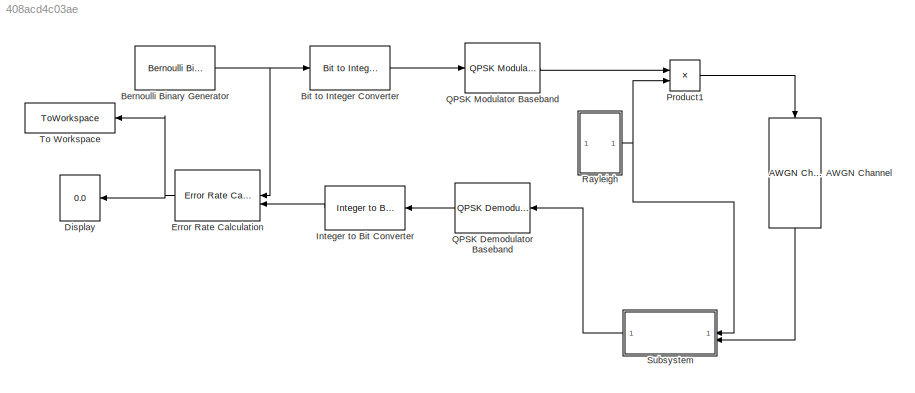
MODEL slx_408acd4c03ae
KIND model
CONFIG AbsTol = auto
CONFIG EnableMultiTasking = off
CONFIG FixedStep = auto
CONFIG MaxStep = auto
CONFIG MinStep = auto
CONFIG RelTol = 1e-3
CONFIG SampleTimeConstraint = Unconstrained
CONFIG SolverName = VariableStepAuto
CONFIG StartTime = 0.0
CONFIG StopTime = 10.0
BLOCK [Reference] AWGN Channel  REF=commchan3/AWGN
Channel
  NameLocation = left
  SourceBlock = commchan3/AWGN\nChannel
  SourceType = AWGN Channel
BLOCK [Reference] Bernoulli Binary Generator  REF=commrandsrc3/Bernoulli Binary
Generator
  SourceBlock = commrandsrc3/Bernoulli Binary\nGenerator
  SourceType = Bernoulli Binary Generator
BLOCK [Reference] Bit to Integer Converter  REF=simulink/Logic and Bit
Operations/Bit to Integer
Converter
  SourceBlock = simulink/Logic and Bit\nOperations/Bit to Integer\nConverter
  SourceType = Bit to Integer Converter
BLOCK [Display] Display
  Decimation = 1
  NameLocation = top
BLOCK [Reference] Error Rate Calculation  REF=commsink2/Error Rate
Calculation
  NameLocation = top
  SourceBlock = commsink2/Error Rate\nCalculation
  SourceType = Error Rate Calculation
BLOCK [Reference] Integer to Bit Converter  REF=simulink/Logic and Bit
Operations/Integer to Bit
Converter
  LibrarySourceBlock = commutil2/Integer to Bit\nConverter
  NameLocation = top
  SourceBlock = simulink/Logic and Bit\nOperations/Integer to Bit\nConverter
  SourceType = Integer to Bit Converter
BLOCK [Product] Product1
BLOCK [Reference] QPSK Demodulator Baseband  REF=commdigbbndpm3/QPSK
Demodulator
Baseband
  LibrarySourceBlock = commhdldigbbndpm/QPSK\nDemodulator\nBaseband
  NameLocation = top
  SourceBlock = commdigbbndpm3/QPSK\nDemodulator\nBaseband
  SourceType = QPSK Demodulator Baseband
BLOCK [Reference] QPSK Modulator Baseband  REF=commdigbbndpm3/QPSK
Modulator
Baseband
  SourceBlock = commdigbbndpm3/QPSK\nModulator\nBaseband
  SourceType = QPSK Modulator Baseband
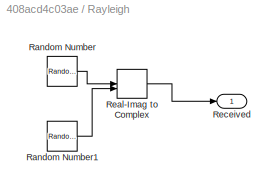
BLOCK [SubSystem] Rayleigh
BLOCK [RandomNumber] Rayleigh/Random Number
  SampleTime = 0.1
  Variance = 1/2
BLOCK [RandomNumber] Rayleigh/Random Number1
  SampleTime = 0.1
  Variance = 1/2
BLOCK [RealImagToComplex] Rayleigh/Real-Imag to Complex
BLOCK [Outport] Rayleigh/Received
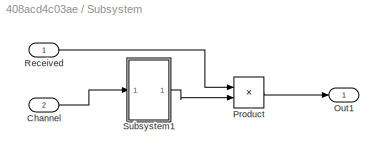
BLOCK [SubSystem] Subsystem
  NameLocation = top
BLOCK [Inport] Subsystem/Channel
  Port = 2
BLOCK [Outport] Subsystem/Out1
BLOCK [Product] Subsystem/Product
BLOCK [Inport] Subsystem/Received
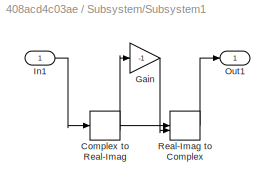
BLOCK [SubSystem] Subsystem/Subsystem1
BLOCK [ComplexToRealImag] Subsystem/Subsystem1/Complex to Real-Imag
BLOCK [Gain] Subsystem/Subsystem1/Gain
  Gain = -1
BLOCK [Inport] Subsystem/Subsystem1/In1
BLOCK [Outport] Subsystem/Subsystem1/Out1
BLOCK [RealImagToComplex] Subsystem/Subsystem1/Real-Imag to Complex
BLOCK [ToWorkspace] To Workspace
  FixptAsFi = on
  MaxDataPoints = 1
  NameLocation = top
  SampleTime = -1
  VariableName = BER
LINE AWGN Channel:1 -> Subsystem:2
NET Bernoulli Binary Generator:1 -> Bit to Integer Converter:1, Error Rate Calculation:1
LINE Bit to Integer Converter:1 -> QPSK Modulator Baseband:1
NET Error Rate Calculation:1 -> Display:1, To Workspace:1
LINE Integer to Bit Converter:1 -> Error Rate Calculation:2
LINE Product1:1 -> AWGN Channel:1
LINE QPSK Demodulator Baseband:1 -> Integer to Bit Converter:1
LINE QPSK Modulator Baseband:1 -> Product1:1
LINE Rayleigh/Random Number1:1 -> Rayleigh/Real-Imag to Complex:2
LINE Rayleigh/Random Number:1 -> Rayleigh/Real-Imag to Complex:1
LINE Rayleigh/Real-Imag to Complex:1 -> Rayleigh/Received:1
NET Rayleigh:1 -> Product1:2, Subsystem:1
LINE Subsystem/Channel:1 -> Subsystem/Subsystem1:1
LINE Subsystem/Product:1 -> Subsystem/Out1:1
LINE Subsystem/Received:1 -> Subsystem/Product:1
LINE Subsystem/Subsystem1/Complex to Real-Imag:1 -> Subsystem/Subsystem1/Real-Imag to Complex:1
LINE Subsystem/Subsystem1/Complex to Real-Imag:2 -> Subsystem/Subsystem1/Gain:1
LINE Subsystem/Subsystem1/Gain:1 -> Subsystem/Subsystem1/Real-Imag to Complex:2
LINE Subsystem/Subsystem1/In1:1 -> Subsystem/Subsystem1/Complex to Real-Imag:1
LINE Subsystem/Subsystem1/Real-Imag to Complex:1 -> Subsystem/Subsystem1/Out1:1
LINE Subsystem/Subsystem1:1 -> Subsystem/Product:2
LINE Subsystem:1 -> QPSK Demodulator Baseband:1
note: NET lines group one-source signal fan-out (src -> all destinations, sorted); 1:1 wires keep LINE
